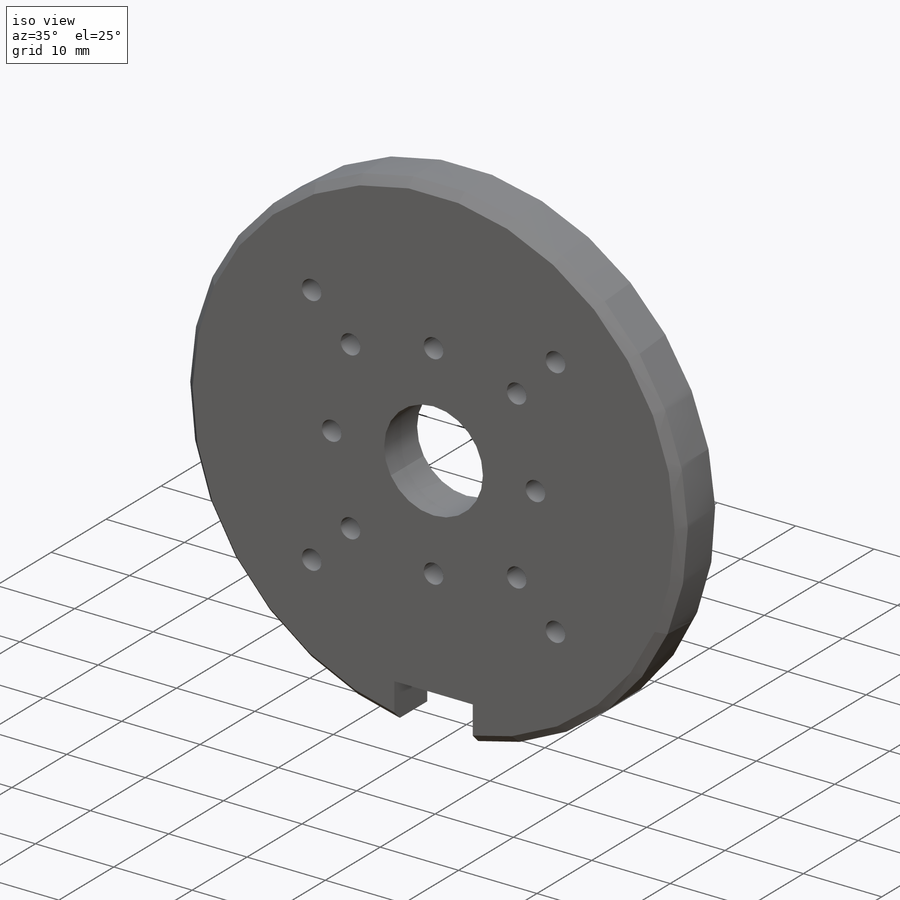
[diagram: iso view]
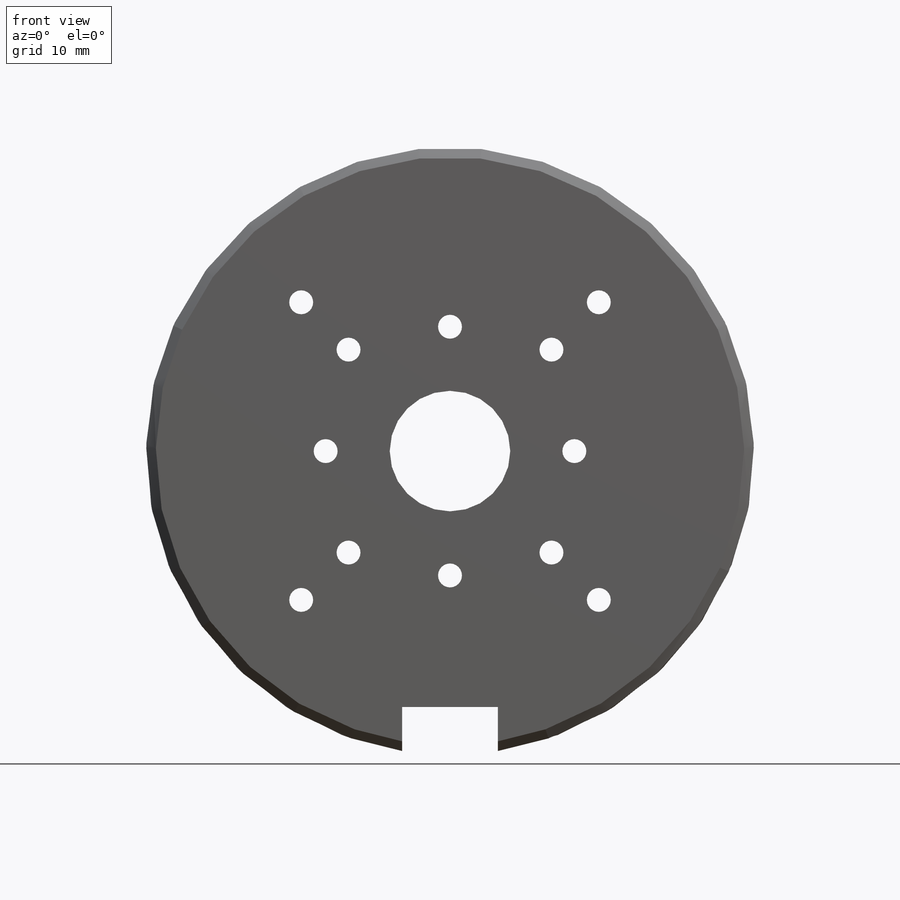
[diagram: front view]
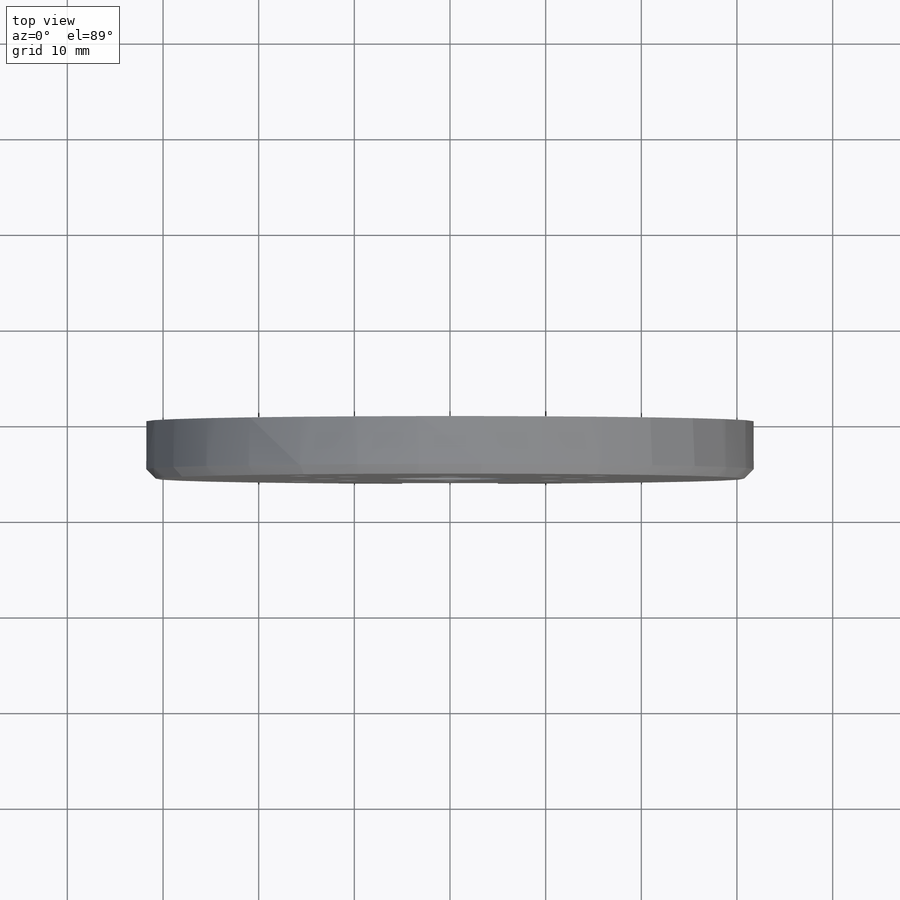
[diagram: top view]
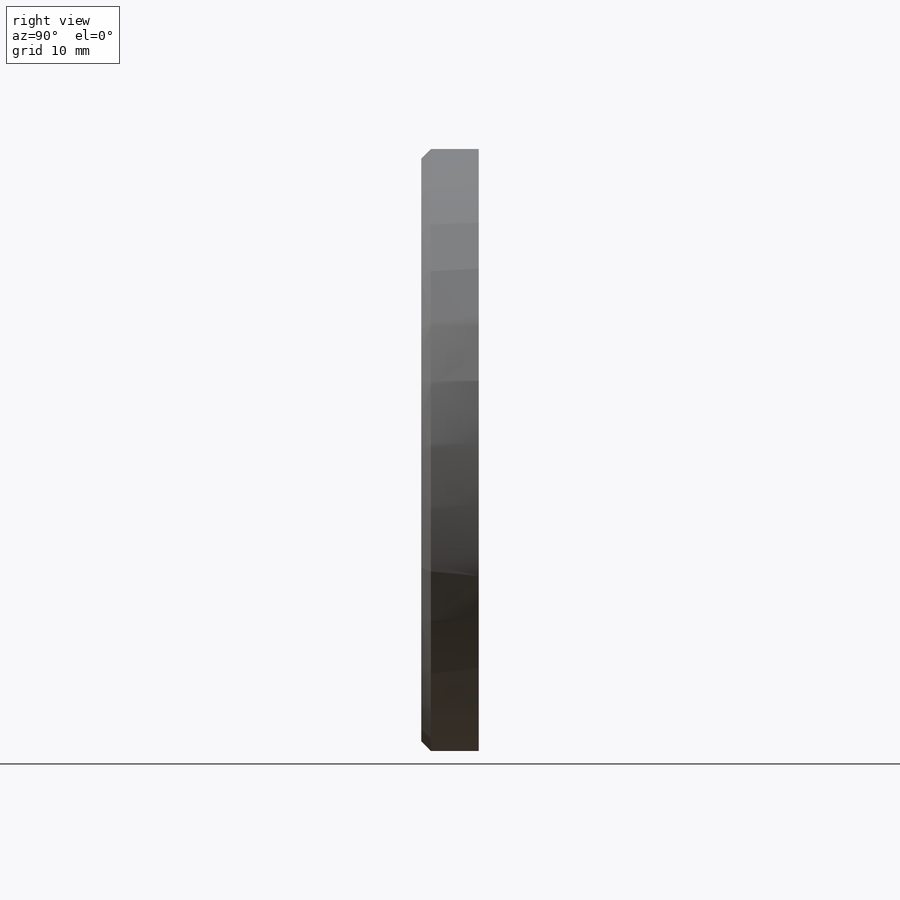
[diagram: right view]
SOLIDWORKS PART (.sldprt)
format: sldprt  version: not decoded by parser v0  size: 351,232 bytes
history: native  units: mm
features: thread x12, sketch x8, plane x3, cut_extrude x2, hole x2, material x1, extrude x1, chamfer x1 (+8 scaffold rows collapsed)
feature tree (38):
  scaffold x8  (default folders/planes/origin — collapsed)
  material  "Сплав 2024"
  plane  "Спереди"
  plane  "Сверху"
  plane  "Справа"
  sketch  "Эскиз1"  dims[D1=63.5mm]
  extrude  "Бобышка-Вытянуть1"  Depth=6mm
  sketch  "Эскиз2"  dims[c1.D1=26.0mm c1.D2=16.0mm c2.D2=120.0deg c2.D3=~12.287823mm c3.D3=120.0deg c3.D4=10.0mm c3.D5=10.0mm]
  cut_extrude  "Вырез-Вытянуть1"  [1 undecoded]
  hole  "Отверстие обработанное метчиком M3x0.52"  [1 undecoded]
  sketch  "Эскиз4"
  sketch  "Эскиз3"  dims[hole-wizard template sketch: 60 standard entries collapsed; hole parameters kept: c18.Глубина проходного сверла=6.0mm]
  thread  "Отверстие резьбы1"  Diameter=3mm  [1 undecoded]
  thread  "Отверстие резьбы2"  Diameter=3mm  [1 undecoded]
  thread  "Отверстие резьбы3"  Diameter=3mm  [1 undecoded]
  thread  "Отверстие резьбы12"  Diameter=3mm  [1 undecoded]
  sketch  "Эскиз5"  dims[c1.D1=30.0mm c1.D4=44.0mm c1.D2=16.0mm c2.D2=45.0deg c2.D3=25.0mm c3.D3=90.0deg]
  hole  "Отверстие обработанное метчиком M3x0.51"  [1 undecoded]
  sketch  "Эскиз7"
  sketch  "Эскиз6"  dims[hole-wizard template sketch: 60 standard entries collapsed; hole parameters kept: c18.Глубина проходного сверла=6.0mm]
  thread  "Отверстие резьбы4"  Diameter=3mm  [1 undecoded]
  thread  "Отверстие резьбы5"  Diameter=3mm  [1 undecoded]
  thread  "Отверстие резьбы6"  Diameter=3mm  [1 undecoded]
  thread  "Отверстие резьбы7"  Diameter=3mm  [1 undecoded]
  thread  "Отверстие резьбы8"  Diameter=3mm  [1 undecoded]
  thread  "Отверстие резьбы9"  Diameter=3mm  [1 undecoded]
  thread  "Отверстие резьбы10"  Diameter=3mm  [1 undecoded]
  thread  "Отверстие резьбы11"  Diameter=3mm  [1 undecoded]
  sketch  "Эскиз8"  dims[D1=12.6mm]
  cut_extrude  "Вырез-Вытянуть2"  [1 undecoded]
  chamfer  "Фаска1"  Distance=1mm Angle=45deg
decode coverage: 20 of 26 modeling features carry decoded parameters
note: ~ marks probable driven/reference dimensions
note: 16 parameter values undecoded
summary: no parameter record found for 4 features
note: suppression state not decoded; provenance and decode notes live in map.json
